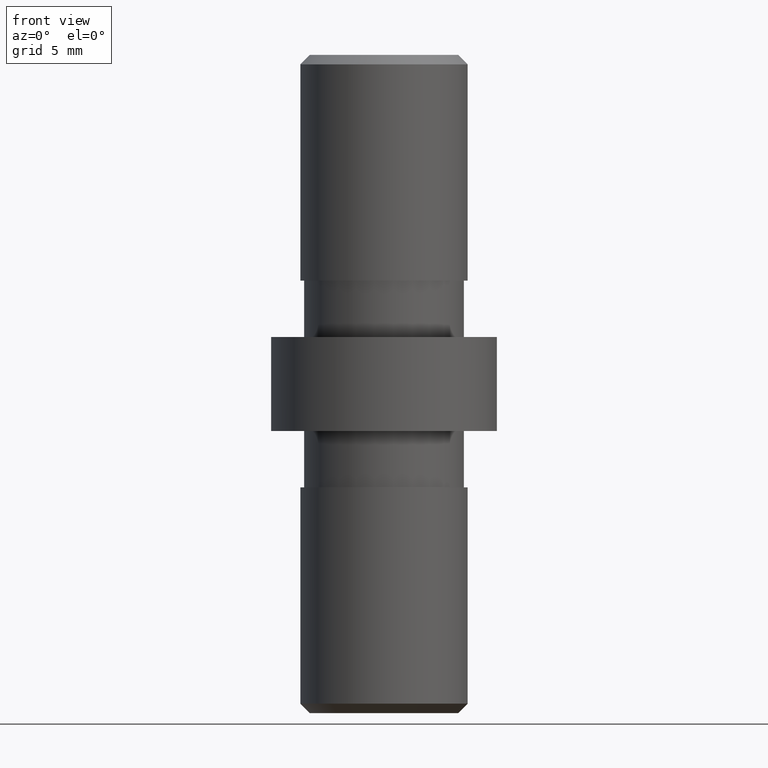
[diagram: clean part render]
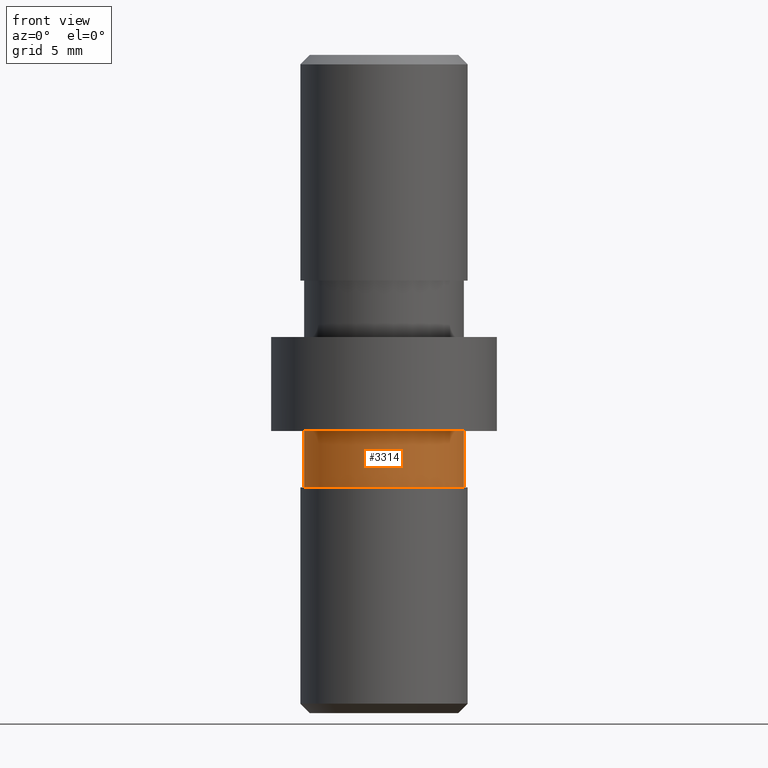
[diagram: same view with one face highlighted and labeled with its STEP entity id]
A machine part, front view. The second image highlights one B-rep face of the part: STEP entity #3314.
In plain terms, the highlighted cylindrical surface (partial cylindrical patch) has radius 4.25 mm, axis along (-0, -0, -1).
Its self-contained STEP definition (entity closure, byte-faithful):
#260 = ORIENTED_EDGE ( 'NONE', *, *, #10850, .T. ) ;
#328 = VERTEX_POINT ( 'NONE', #10362 ) ;
#611 = VECTOR ( 'NONE', #3816, 1000.000000000000000 ) ;
#616 = CARTESIAN_POINT ( 'NONE',  ( 0.000000000000000000, -2.143131898507868643E-15, -2.499999999999998668 ) ) ;
#1238 = FACE_OUTER_BOUND ( 'NONE', #1844, .T. ) ;
#1529 = VERTEX_POINT ( 'NONE', #5727 ) ;
#1565 = ORIENTED_EDGE ( 'NONE', *, *, #8863, .F. ) ;
#1844 = EDGE_LOOP ( 'NONE', ( #1565, #260, #8605, #13217 ) ) ;
#2715 = CARTESIAN_POINT ( 'NONE',  ( 4.249999999999998224, -1.622657008870243868E-15, -17.50000000000000000 ) ) ;
#2742 = AXIS2_PLACEMENT_3D ( 'NONE', #12876, #8608, #11735 ) ;
#3259 = CARTESIAN_POINT ( 'NONE',  ( -4.249999999999998224, -2.143131898507868643E-15, -17.50000000000000000 ) ) ;
#3314 = ADVANCED_FACE ( 'NONE', ( #1238 ), #12962, .T. ) ;
#3739 = DIRECTION ( 'NONE',  ( -0.000000000000000000, -0.000000000000000000, -1.000000000000000000 ) ) ;
#3753 = AXIS2_PLACEMENT_3D ( 'NONE', #13683, #3739, #11421 ) ;
#3816 = DIRECTION ( 'NONE',  ( -0.000000000000000000, -0.000000000000000000, -1.000000000000000000 ) ) ;
#5727 = CARTESIAN_POINT ( 'NONE',  ( -4.249999999999998224, -2.143131898507868643E-15, -2.499999999999998668 ) ) ;
#5839 = CARTESIAN_POINT ( 'NONE',  ( 4.249999999999998224, -1.622657008870243868E-15, -2.499999999999998668 ) ) ;
#5894 = VERTEX_POINT ( 'NONE', #5839 ) ;
#6285 = EDGE_CURVE ( 'NONE', #1529, #11926, #6998, .T. ) ;
#6998 = LINE ( 'NONE', #3259, #12415 ) ;
#7232 = DIRECTION ( 'NONE',  ( -0.000000000000000000, -0.000000000000000000, -1.000000000000000000 ) ) ;
#7283 = DIRECTION ( 'NONE',  ( -1.000000000000000000, 0.000000000000000000, 0.000000000000000000 ) ) ;
#8132 = CIRCLE ( 'NONE', #8389, 4.249999999999998224 ) ;
#8389 = AXIS2_PLACEMENT_3D ( 'NONE', #616, #7232, #7283 ) ;
#8556 = CARTESIAN_POINT ( 'NONE',  ( -4.249999999999998224, -2.143131898507868643E-15, -5.500000000000000000 ) ) ;
#8605 = ORIENTED_EDGE ( 'NONE', *, *, #6285, .T. ) ;
#8608 = DIRECTION ( 'NONE',  ( -0.000000000000000000, -0.000000000000000000, -1.000000000000000000 ) ) ;
#8863 = EDGE_CURVE ( 'NONE', #5894, #328, #13885, .T. ) ;
#9261 = EDGE_CURVE ( 'NONE', #328, #11926, #13050, .T. ) ;
#10073 = DIRECTION ( 'NONE',  ( -0.000000000000000000, -0.000000000000000000, -1.000000000000000000 ) ) ;
#10362 = CARTESIAN_POINT ( 'NONE',  ( 4.249999999999998224, -1.622657008870243868E-15, -5.500000000000000000 ) ) ;
#10850 = EDGE_CURVE ( 'NONE', #5894, #1529, #8132, .T. ) ;
#11421 = DIRECTION ( 'NONE',  ( -1.000000000000000000, 0.000000000000000000, 0.000000000000000000 ) ) ;
#11735 = DIRECTION ( 'NONE',  ( -1.000000000000000000, 0.000000000000000000, 0.000000000000000000 ) ) ;
#11926 = VERTEX_POINT ( 'NONE', #8556 ) ;
#12415 = VECTOR ( 'NONE', #10073, 1000.000000000000000 ) ;
#12876 = CARTESIAN_POINT ( 'NONE',  ( 0.000000000000000000, -2.143131898507868643E-15, -5.500000000000000000 ) ) ;
#12962 = CYLINDRICAL_SURFACE ( 'NONE', #3753, 4.249999999999998224 ) ;
#13050 = CIRCLE ( 'NONE', #2742, 4.249999999999998224 ) ;
#13217 = ORIENTED_EDGE ( 'NONE', *, *, #9261, .F. ) ;
#13683 = CARTESIAN_POINT ( 'NONE',  ( 0.000000000000000000, -2.143131898507868643E-15, -17.50000000000000000 ) ) ;
#13885 = LINE ( 'NONE', #2715, #611 ) ;